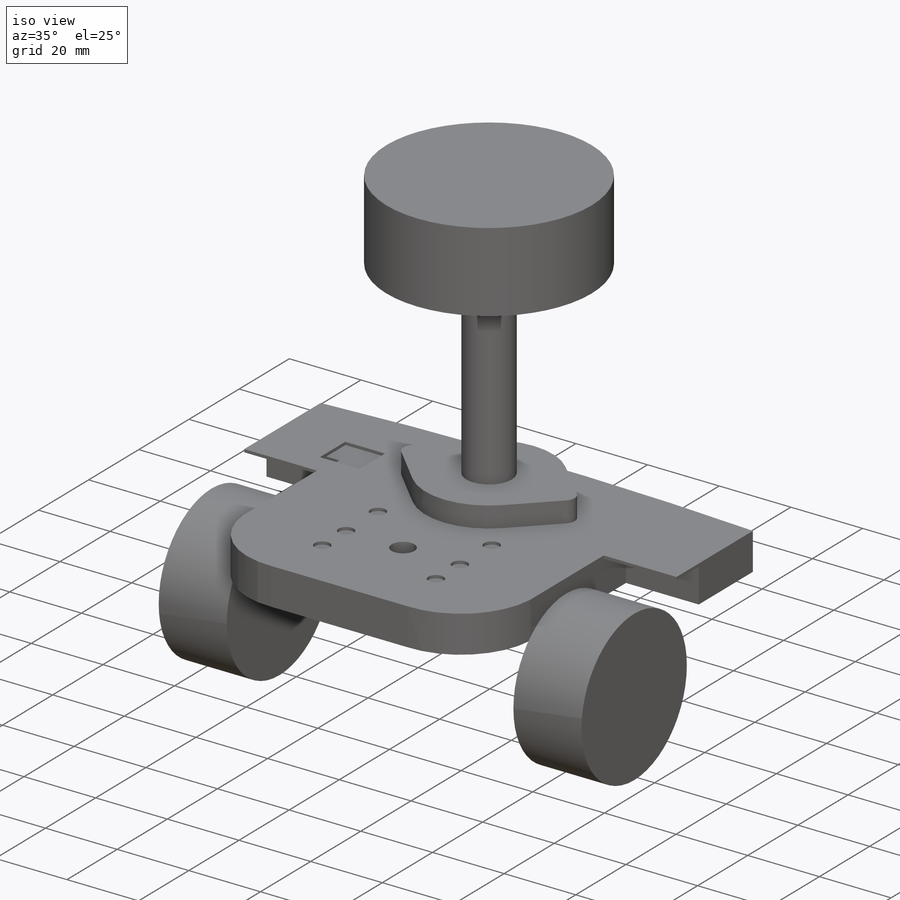
[diagram: iso view]
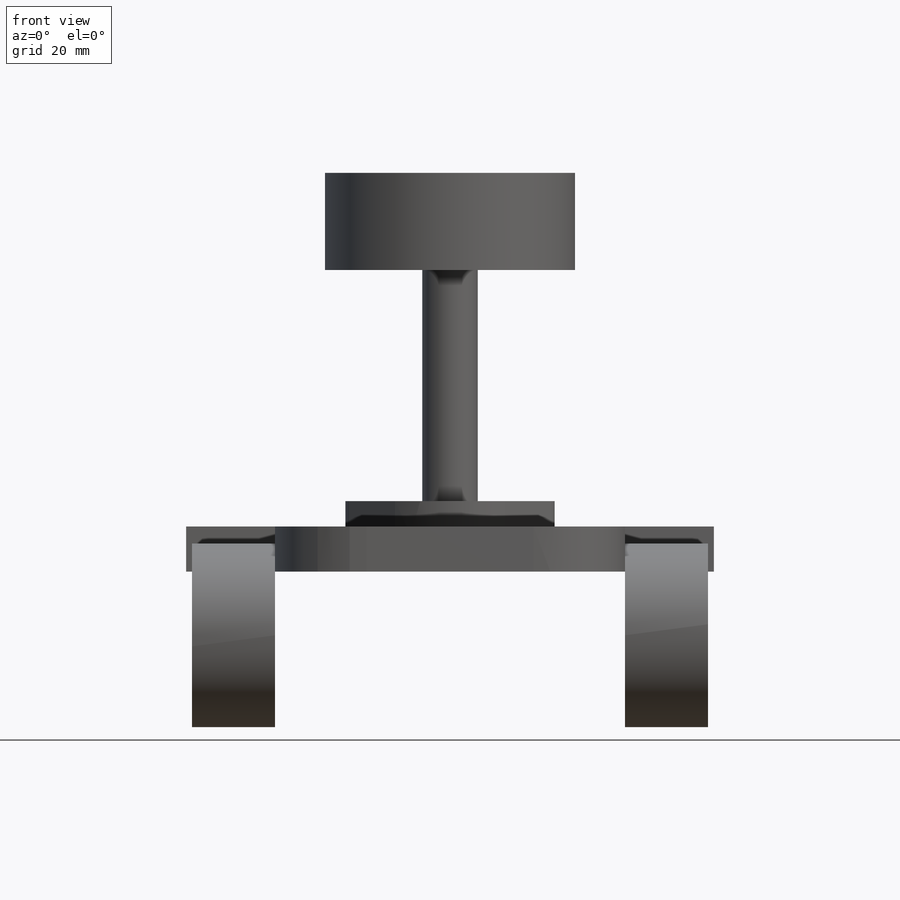
[diagram: front view]
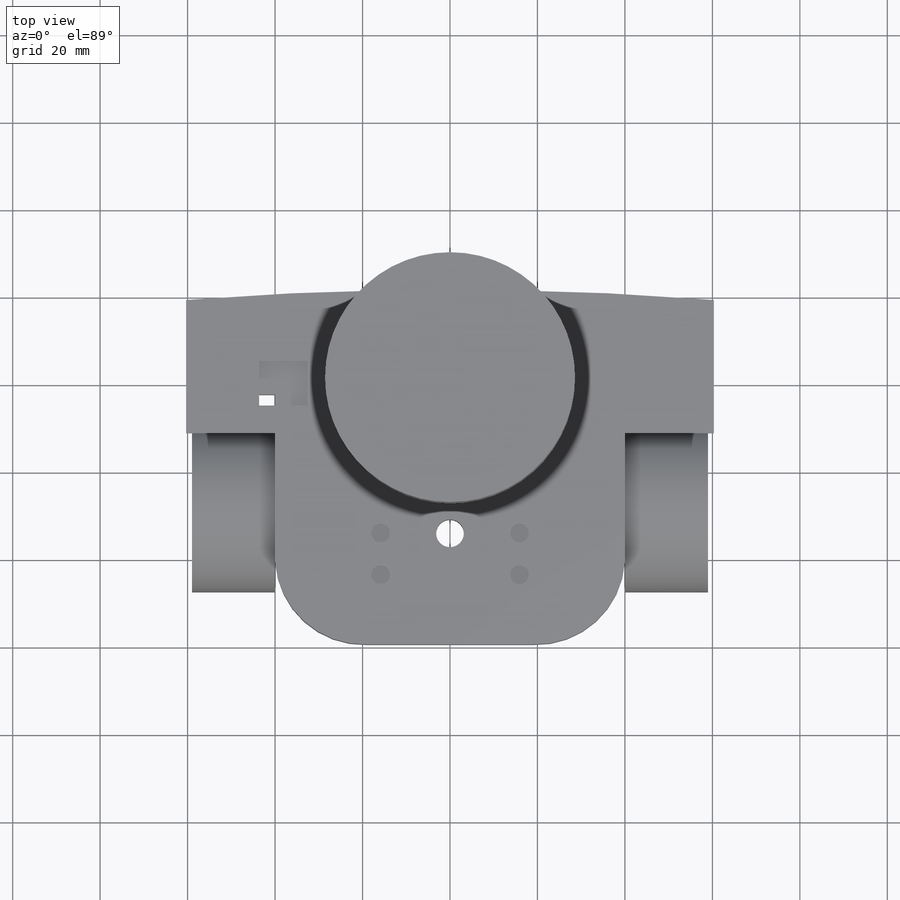
[diagram: top view]
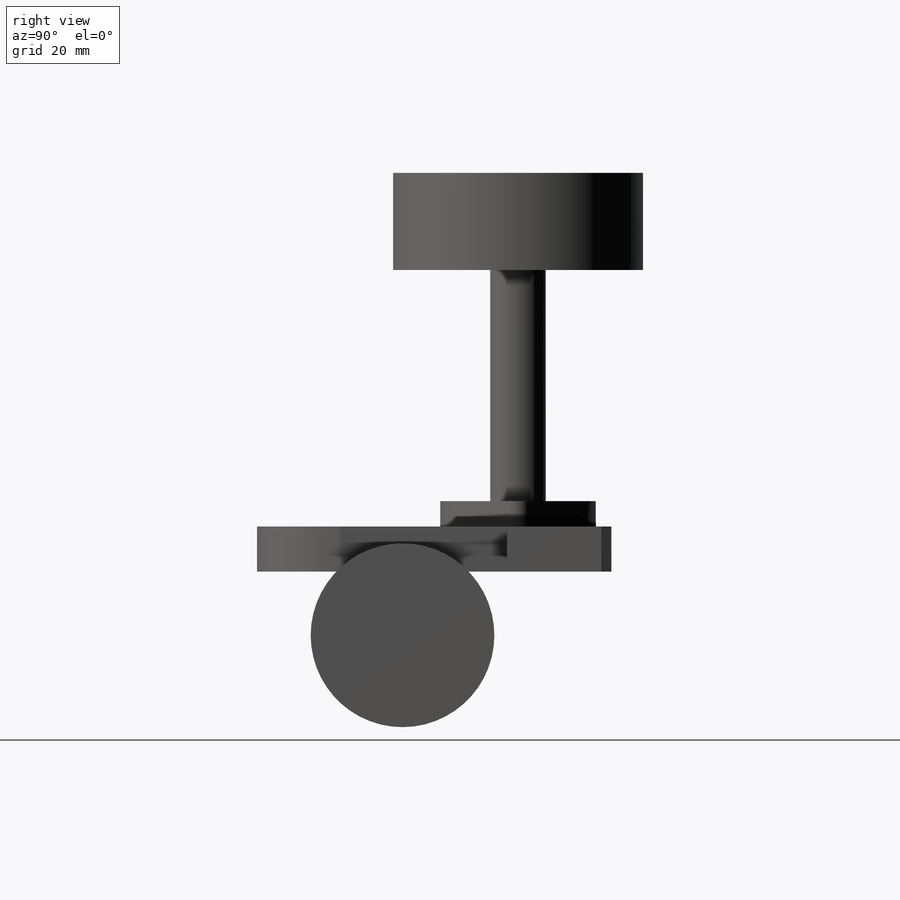
[diagram: right view]
SOLIDWORKS PART (.sldprt)
format: sldprt  version: not decoded by parser v0  size: 467,968 bytes
history: native  units: mm
features: sketch x11, extrude x7, cut_extrude x4, material x1, mirror x1 (+16 scaffold rows collapsed)
feature tree (40):
  scaffold x16  (default folders/planes/origin — collapsed)
  material  "Material <not specified>"
  sketch  "Sketch1"  dims[D4=20.32mm D1=120.65mm D2=80.01mm D3=38.1mm D5=19.05mm D6=48.26mm D7=78.74mm]
  extrude  "Extrude1"  Depth=0.8128mm
  sketch  "Sketch3"  dims[c1.D1=35.56mm c1.D3=~8.598983mm c1.D4=3.302mm c1.D2=19.05mm c2.D3=42.0mm]
  cut_extrude  "Extrude2"  [1 undecoded]
  sketch  "Sketch4"  dims[D1=22.225mm D2=11.1125mm D3=10.16mm]
  cut_extrude  "Cut-Extrude1"  [1 undecoded]
  sketch  "Sketch5"  dims[c1.D2=4.2164mm c1.D3=4.2164mm c1.D4=4.2164mm c1.D5=4.2164mm c1.D1=~43.277651mm c2.D1=~179.074553deg c3.D1=15.875mm c3.D3=12.7mm c3.D4=9.525mm c3.D5=15.875mm]
  cut_extrude  "Extrude3"  [1 undecoded]
  sketch  "Sketch6"  dims[D1=762.0mm]
  extrude  "Extrude5"  [1 undecoded]
  sketch  "Sketch7"  dims[D2=8.89mm D1=0.0mm]
  extrude  "Extrude6"  Depth=9.525mm
  sketch  "Sketch8"
  extrude  "Extrude7"  Depth=6.604mm
  sketch  "Sketch9"  dims[D1=42.0mm D2=33.274mm D3=24.892mm]
  extrude  "Extrude8"  Depth=19mm
  mirror  "Mirror3"
  sketch  "Sketch10"  dims[D1=12.7mm]
  extrude  "Extrude9"  Depth=52.832mm
  sketch  "Sketch11"  dims[D1=57.15mm]
  extrude  "Extrude10"  Depth=22.225mm
  sketch  "Sketch12"  dims[D1=6.35mm]
  cut_extrude  "Extrude11"  [1 undecoded]
decode coverage: 16 of 23 modeling features carry decoded parameters
note: ~ marks probable driven/reference dimensions
note: 5 parameter values undecoded
summary: no parameter record found for 5 features
note: suppression state not decoded; provenance and decode notes live in map.json
